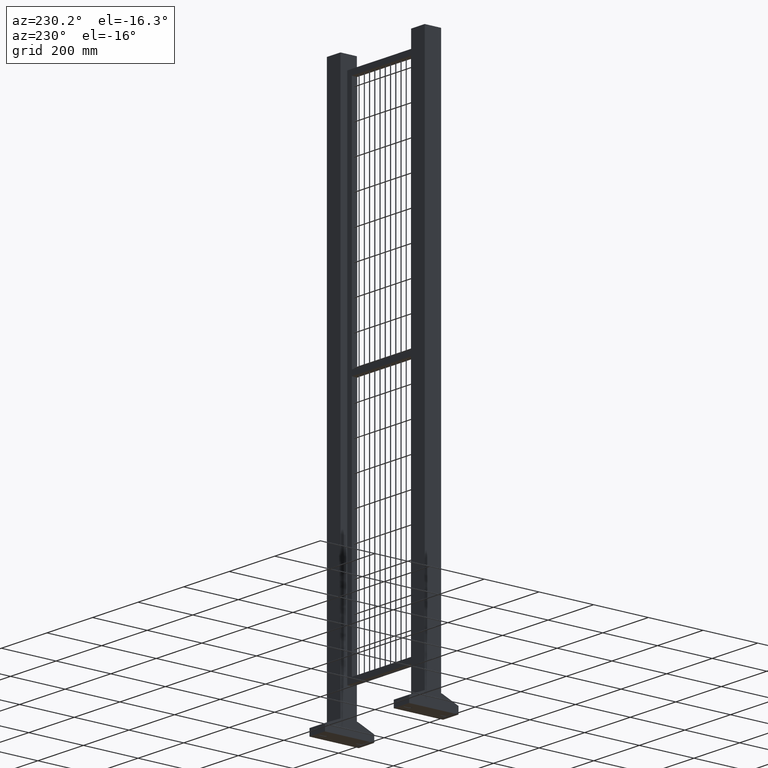
[diagram: clean part render]
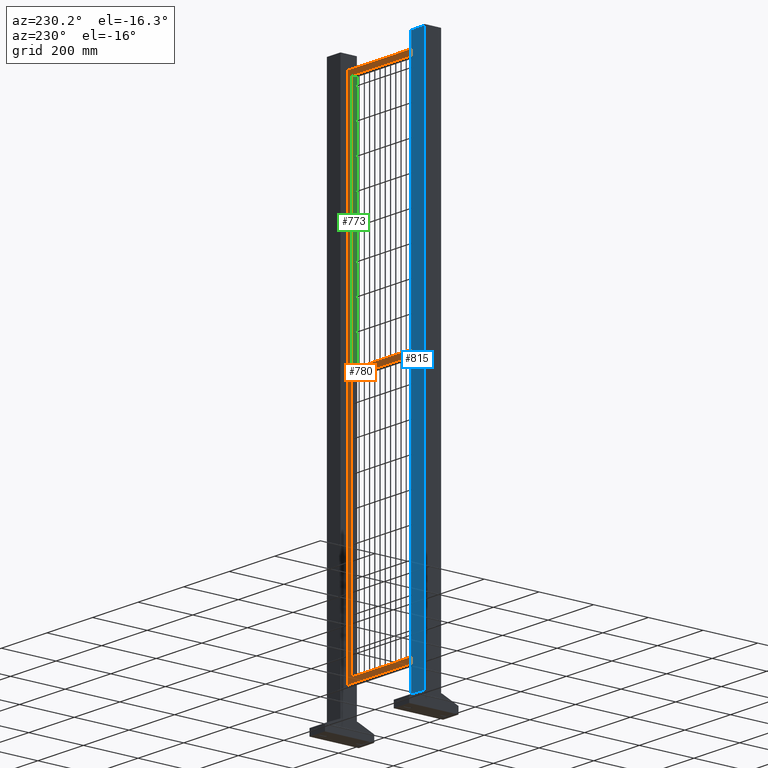
[diagram: same view with three faces highlighted in distinct colors, each labeled with its STEP entity id]
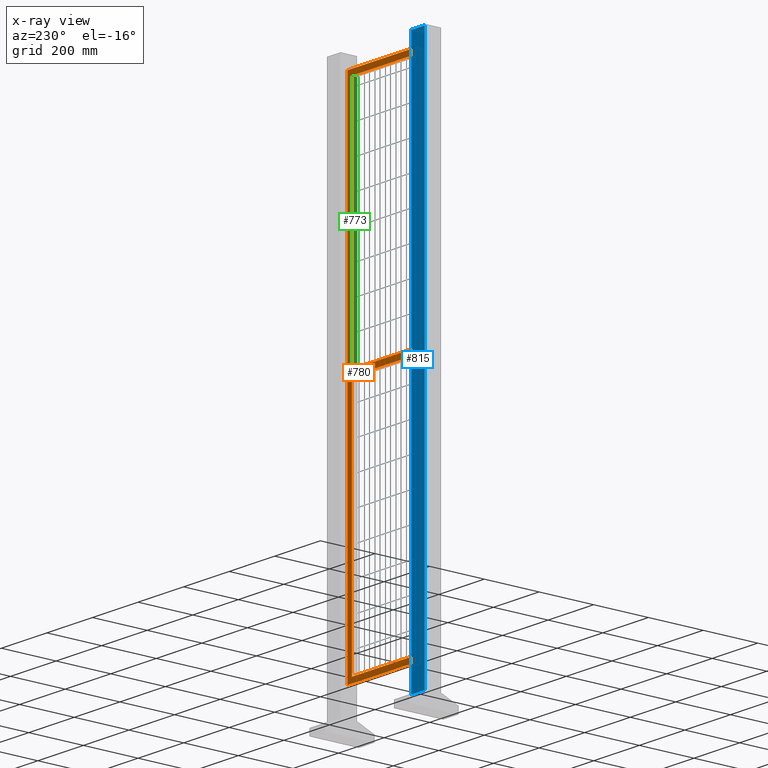
[diagram: x-ray of the same camera — body ghosted, the three highlighted faces saturated]
A machine part, auxiliary view with three faces highlighted in distinct colors.
The next image is the same camera in x-ray (body ghosted, the three faces saturated) — at least one of them is partly hidden behind the body in this view.
Their STEP definitions:

[orange] entity #780 — the highlighted planar face has unit normal (0, -1, 0).
#60=LINE('',#2642,#154);
#64=LINE('',#2651,#158);
#66=LINE('',#2667,#160);
#69=LINE('',#2675,#163);
#74=LINE('',#2685,#168);
#77=LINE('',#2691,#171);
#78=LINE('',#2693,#172);
#82=LINE('',#2702,#176);
#85=LINE('',#2708,#179);
#88=LINE('',#2714,#182);
#92=LINE('',#2720,#186);
#93=LINE('',#2721,#187);
#154=VECTOR('',#2216,1.);
#158=VECTOR('',#2222,1.);
#160=VECTOR('',#2240,1.);
#163=VECTOR('',#2247,1.);
#168=VECTOR('',#2254,1.);
#171=VECTOR('',#2259,1.);
#172=VECTOR('',#2262,1.);
#176=VECTOR('',#2268,1.);
#179=VECTOR('',#2273,1.);
#182=VECTOR('',#2278,1.);
#186=VECTOR('',#2286,1.);
#187=VECTOR('',#2287,1.);
#575=PLANE('',#1924);
#780=ADVANCED_FACE('',(#918,#919,#920),#575,.F.);
#918=FACE_BOUND('',#1051,.T.);
#919=FACE_BOUND('',#1052,.T.);
#920=FACE_BOUND('',#1053,.T.);
#1051=EDGE_LOOP('',(#1260,#1261,#1262,#1263));
#1052=EDGE_LOOP('',(#1264,#1265,#1266,#1267));
#1053=EDGE_LOOP('',(#1268,#1269,#1270,#1271));
#1260=ORIENTED_EDGE('',*,*,#1610,.T.);
#1261=ORIENTED_EDGE('',*,*,#1648,.T.);
#1262=ORIENTED_EDGE('',*,*,#1633,.T.);
#1263=ORIENTED_EDGE('',*,*,#1621,.T.);
#1264=ORIENTED_EDGE('',*,*,#1634,.F.);
#1265=ORIENTED_EDGE('',*,*,#1644,.F.);
#1266=ORIENTED_EDGE('',*,*,#1641,.F.);
#1267=ORIENTED_EDGE('',*,*,#1638,.F.);
#1268=ORIENTED_EDGE('',*,*,#1649,.T.);
#1269=ORIENTED_EDGE('',*,*,#1630,.T.);
#1270=ORIENTED_EDGE('',*,*,#1625,.T.);
#1271=ORIENTED_EDGE('',*,*,#1614,.T.);
#1482=VERTEX_POINT('',#2641);
#1483=VERTEX_POINT('',#2643);
#1486=VERTEX_POINT('',#2650);
#1487=VERTEX_POINT('',#2652);
#1493=VERTEX_POINT('',#2668);
#1496=VERTEX_POINT('',#2676);
#1499=VERTEX_POINT('',#2683);
#1501=VERTEX_POINT('',#2689);
#1502=VERTEX_POINT('',#2694);
#1503=VERTEX_POINT('',#2695);
#1506=VERTEX_POINT('',#2703);
#1508=VERTEX_POINT('',#2709);
#1610=EDGE_CURVE('',#1483,#1482,#60,.T.);
#1614=EDGE_CURVE('',#1487,#1486,#64,.T.);
#1621=EDGE_CURVE('',#1493,#1483,#66,.T.);
#1625=EDGE_CURVE('',#1496,#1487,#69,.T.);
#1630=EDGE_CURVE('',#1499,#1496,#74,.T.);
#1633=EDGE_CURVE('',#1501,#1493,#77,.T.);
#1634=EDGE_CURVE('',#1502,#1503,#78,.T.);
#1638=EDGE_CURVE('',#1503,#1506,#82,.T.);
#1641=EDGE_CURVE('',#1506,#1508,#85,.T.);
#1644=EDGE_CURVE('',#1508,#1502,#88,.T.);
#1648=EDGE_CURVE('',#1482,#1501,#92,.T.);
#1649=EDGE_CURVE('',#1486,#1499,#93,.T.);
#1924=AXIS2_PLACEMENT_3D('',#2722,#2288,#2289);
#2216=DIRECTION('',(-6.30808536718839E-17,0.,1.));
#2222=DIRECTION('',(-6.30808536718839E-17,0.,-1.));
#2240=DIRECTION('',(1.,0.,0.));
#2247=DIRECTION('',(-1.,0.,0.));
#2254=DIRECTION('',(-6.30808536718839E-17,0.,1.));
#2259=DIRECTION('',(-6.30808536718839E-17,0.,-1.));
#2262=DIRECTION('',(0.,0.,1.));
#2268=DIRECTION('',(-1.,0.,0.));
#2273=DIRECTION('',(0.,0.,-1.));
#2278=DIRECTION('',(1.,0.,0.));
#2286=DIRECTION('',(-1.,0.,0.));
#2287=DIRECTION('',(1.,0.,0.));
#2288=DIRECTION('',(0.,-1.,0.));
#2289=DIRECTION('',(0.,0.,-1.));
#2641=CARTESIAN_POINT('',(130.,10.,0.));
#2642=CARTESIAN_POINT('',(130.,10.,-880.));
#2643=CARTESIAN_POINT('',(130.,10.,-880.));
#2650=CARTESIAN_POINT('',(-130.,10.,20.));
#2651=CARTESIAN_POINT('',(-130.,10.,880.));
#2652=CARTESIAN_POINT('',(-130.,10.,880.));
#2667=CARTESIAN_POINT('',(-130.,10.,-880.));
#2668=CARTESIAN_POINT('',(-130.,10.,-880.));
#2675=CARTESIAN_POINT('',(130.,10.,880.));
#2676=CARTESIAN_POINT('',(130.,10.,880.));
#2683=CARTESIAN_POINT('',(130.,10.,20.));
#2685=CARTESIAN_POINT('',(130.,10.,-880.));
#2689=CARTESIAN_POINT('',(-130.,10.,0.));
#2691=CARTESIAN_POINT('',(-130.,10.,880.));
#2693=CARTESIAN_POINT('',(150.,10.,-900.));
#2694=CARTESIAN_POINT('',(150.,10.,-900.));
#2695=CARTESIAN_POINT('',(150.,10.,900.));
#2702=CARTESIAN_POINT('',(150.,10.,900.));
#2703=CARTESIAN_POINT('',(-150.,10.,900.));
#2708=CARTESIAN_POINT('',(-150.,10.,900.));
#2709=CARTESIAN_POINT('',(-150.,10.,-900.));
#2714=CARTESIAN_POINT('',(-150.,10.,-900.));
#2720=CARTESIAN_POINT('',(130.,10.,0.));
#2721=CARTESIAN_POINT('',(-130.,10.,20.));
#2722=CARTESIAN_POINT('',(0.,10.,0.));

[blue] entity #815 — the highlighted planar face has unit normal (0, 1, 0).
#128=LINE('',#2847,#222);
#129=LINE('',#2850,#223);
#130=LINE('',#2852,#224);
#131=LINE('',#2854,#225);
#222=VECTOR('',#2428,1.);
#223=VECTOR('',#2429,1.);
#224=VECTOR('',#2430,1.);
#225=VECTOR('',#2431,1.);
#600=PLANE('',#1977);
#689=FACE_OUTER_BOUND('',#1100,.T.);
#815=ADVANCED_FACE('',(#689),#600,.T.);
#1100=EDGE_LOOP('',(#1388,#1389,#1390,#1391));
#1388=ORIENTED_EDGE('',*,*,#1702,.F.);
#1389=ORIENTED_EDGE('',*,*,#1703,.F.);
#1390=ORIENTED_EDGE('',*,*,#1704,.T.);
#1391=ORIENTED_EDGE('',*,*,#1705,.T.);
#1548=VERTEX_POINT('',#2848);
#1549=VERTEX_POINT('',#2849);
#1550=VERTEX_POINT('',#2851);
#1551=VERTEX_POINT('',#2853);
#1702=EDGE_CURVE('',#1548,#1549,#128,.T.);
#1703=EDGE_CURVE('',#1550,#1548,#129,.T.);
#1704=EDGE_CURVE('',#1550,#1551,#130,.T.);
#1705=EDGE_CURVE('',#1551,#1549,#131,.T.);
#1977=AXIS2_PLACEMENT_3D('',#2855,#2432,#2433);
#2428=DIRECTION('',(0.,0.,-1.));
#2429=DIRECTION('',(0.,1.,0.));
#2430=DIRECTION('',(0.,0.,-1.));
#2431=DIRECTION('',(0.,1.,0.));
#2432=DIRECTION('',(1.,0.,0.));
#2433=DIRECTION('',(0.,0.,-1.));
#2847=CARTESIAN_POINT('',(30.,30.,1996.));
#2848=CARTESIAN_POINT('',(30.,30.,1996.));
#2849=CARTESIAN_POINT('',(30.,30.,50.));
#2850=CARTESIAN_POINT('',(30.,-30.,1996.));
#2851=CARTESIAN_POINT('',(30.,-30.,1996.));
#2852=CARTESIAN_POINT('',(30.,-30.,1996.));
#2853=CARTESIAN_POINT('',(30.,-30.,50.));
#2854=CARTESIAN_POINT('',(30.,-30.,50.));
#2855=CARTESIAN_POINT('',(30.,-30.,1996.));

[green] entity #773 — the highlighted planar face has unit normal (-1, 0, -0).
#70=LINE('',#2677,#164);
#72=LINE('',#2681,#166);
#73=LINE('',#2684,#167);
#74=LINE('',#2685,#168);
#164=VECTOR('',#2248,1.);
#166=VECTOR('',#2252,1.);
#167=VECTOR('',#2253,1.);
#168=VECTOR('',#2254,1.);
#568=PLANE('',#1917);
#658=FACE_OUTER_BOUND('',#1042,.T.);
#773=ADVANCED_FACE('',(#658),#568,.T.);
#1042=EDGE_LOOP('',(#1224,#1225,#1226,#1227));
#1224=ORIENTED_EDGE('',*,*,#1628,.F.);
#1225=ORIENTED_EDGE('',*,*,#1629,.T.);
#1226=ORIENTED_EDGE('',*,*,#1626,.T.);
#1227=ORIENTED_EDGE('',*,*,#1630,.F.);
#1496=VERTEX_POINT('',#2676);
#1497=VERTEX_POINT('',#2678);
#1498=VERTEX_POINT('',#2682);
#1499=VERTEX_POINT('',#2683);
#1626=EDGE_CURVE('',#1497,#1496,#70,.T.);
#1628=EDGE_CURVE('',#1498,#1499,#72,.T.);
#1629=EDGE_CURVE('',#1498,#1497,#73,.T.);
#1630=EDGE_CURVE('',#1499,#1496,#74,.T.);
#1917=AXIS2_PLACEMENT_3D('',#2686,#2255,#2256);
#2248=DIRECTION('',(0.,1.,0.));
#2252=DIRECTION('',(0.,1.,0.));
#2253=DIRECTION('',(-6.30808536718839E-17,0.,1.));
#2254=DIRECTION('',(-6.30808536718839E-17,0.,1.));
#2255=DIRECTION('',(-1.,0.,-6.30808536718839E-17));
#2256=DIRECTION('',(-5.55111512312578E-17,0.,1.));
#2676=CARTESIAN_POINT('',(130.,10.,880.));
#2677=CARTESIAN_POINT('',(130.,-10.,880.));
#2678=CARTESIAN_POINT('',(130.,-10.,880.));
#2681=CARTESIAN_POINT('',(130.,-10.,20.));
#2682=CARTESIAN_POINT('',(130.,-10.,20.));
#2683=CARTESIAN_POINT('',(130.,10.,20.));
#2684=CARTESIAN_POINT('',(130.,-10.,-880.));
#2685=CARTESIAN_POINT('',(130.,10.,-880.));
#2686=CARTESIAN_POINT('',(130.,-10.,-880.));